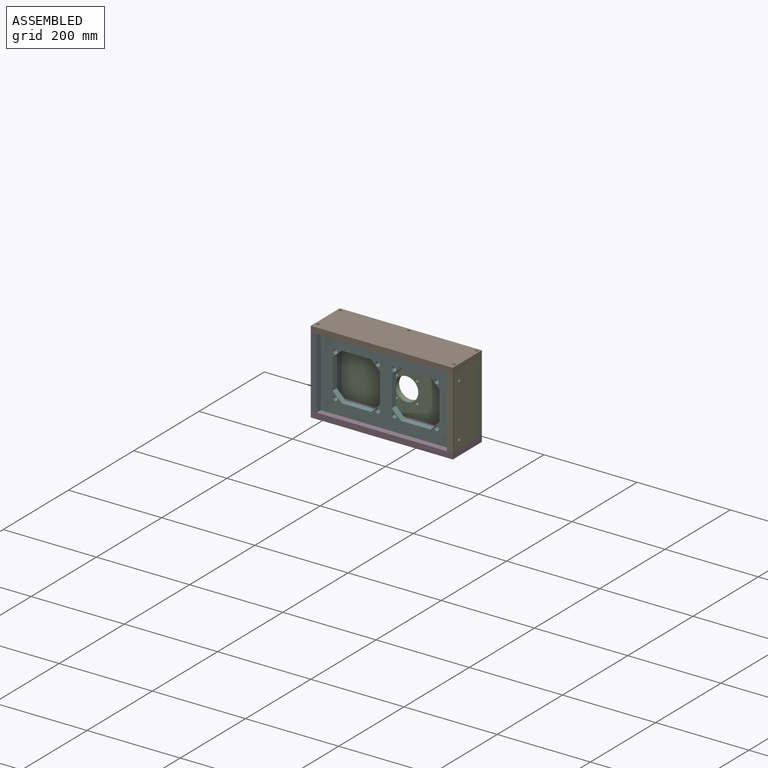
[diagram: assembled view]
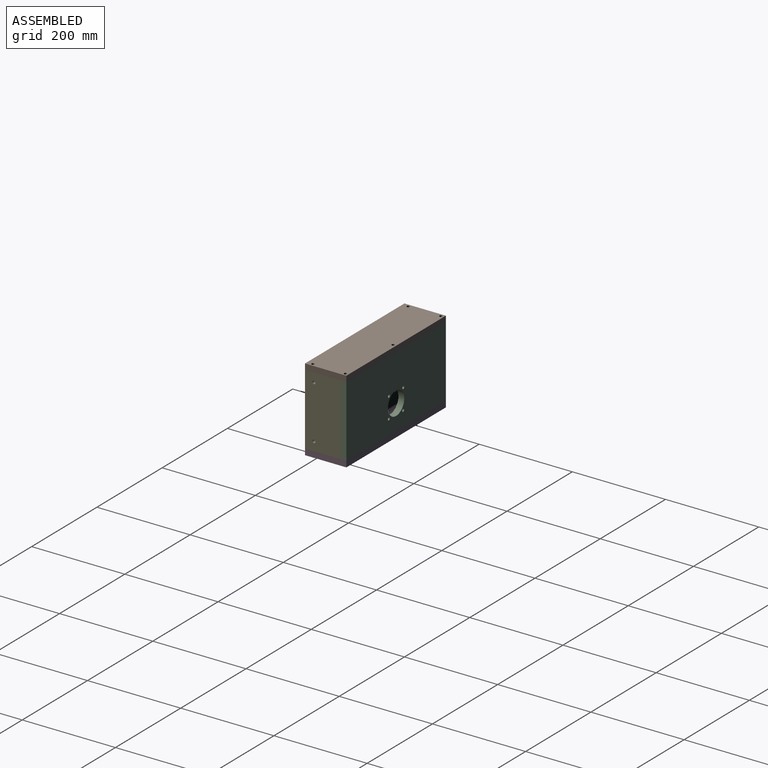
[diagram: assembled view, second angle]
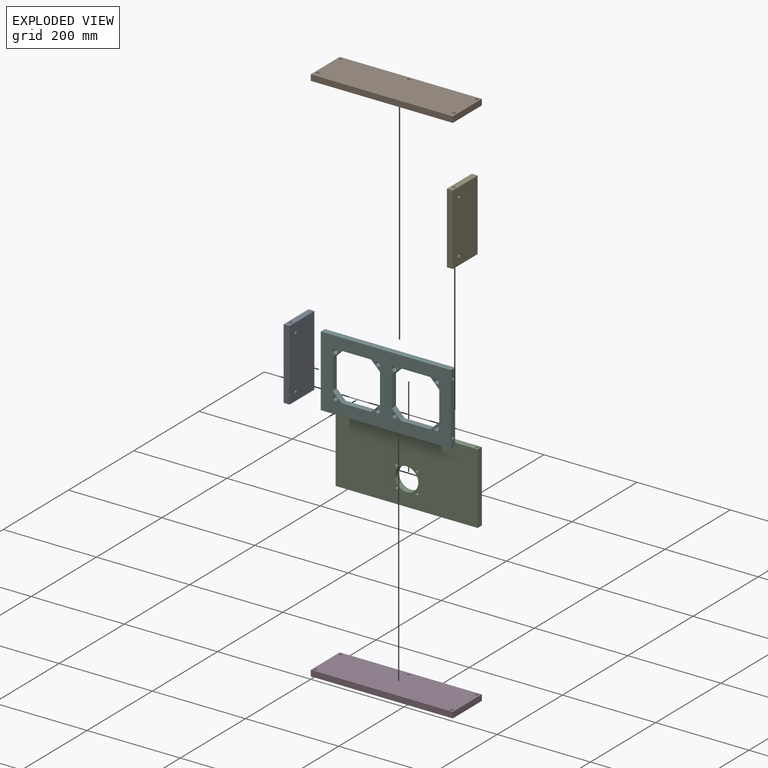
[diagram: exploded view]
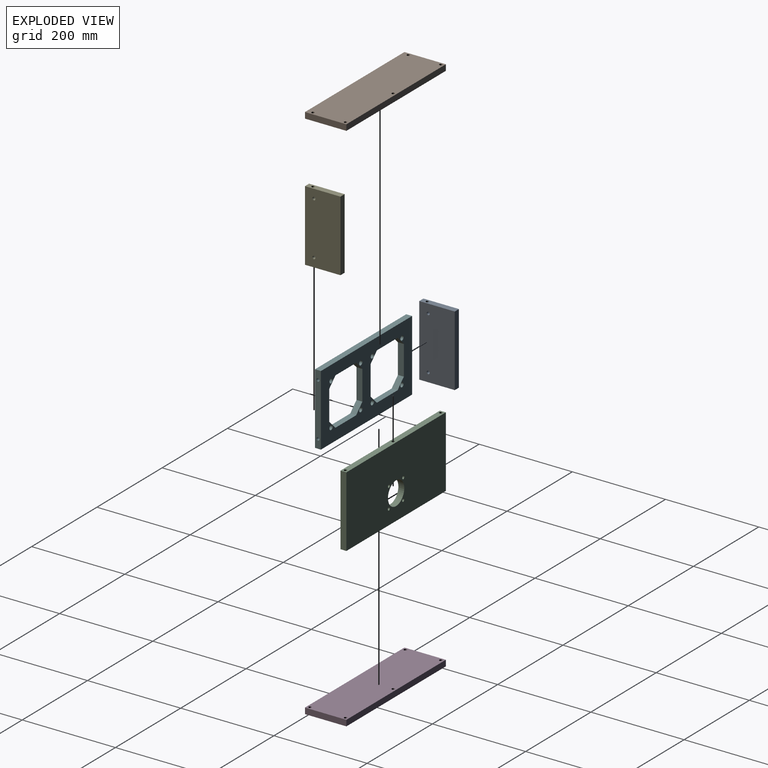
[diagram: exploded view, second angle]
ASSEMBLY  parts=6 mates=5
PART A: 12 faces, bbox 12.7x76.2x152.4 mm
  f0: plane 76.2x12.7mm, normal (0,0,1), area 936.1mm2, adj f1,f3,f4,f5,f8
  f1: plane 152.4x12.7mm, normal (0,1,0), area 1935.5mm2, adj f0,f2,f4,f5
  f2: plane 76.2x12.7mm, normal (0,0,-1), area 936.1mm2, adj f1,f3,f4,f5,f6
  f3: plane 152.4x12.7mm, normal (0,-1,0), area 1935.5mm2, adj f0,f2,f4,f5
  f4: plane 152.4x76.2mm, normal (-1,0,0), area 11549.5mm2, adj f0,f1,f2,f3,f10,f11
  f5: plane 152.4x76.2mm, normal (1,0,0), area 11549.5mm2, adj f0,f1,f2,f3,f10,f11
  f6: cylinder r=3.17mm len=12.7mm, axis (0,0,-1), area 253.4mm2, adj f2,f7
  f7: plane 6.35x6.35mm, normal (0,0,-1), area 31.7mm2, adj f6
  f8: cylinder r=3.17mm len=12.7mm, axis (0,0,1), area 253.4mm2, adj f0,f9
  f9: plane 6.35x6.35mm, normal (0,0,1), area 31.7mm2, adj f8
  f10: cylinder r=3.17mm len=12.7mm, axis (-1,0,0), area 253.4mm2, adj f4,f5
  f11: cylinder r=3.17mm len=12.7mm, axis (-1,0,0), area 253.4mm2, adj f4,f5
PART B: 11 faces, bbox 304.8x88.9x12.7 mm
  f0: plane 304.8x88.9mm, normal (0,0,1), area 26938.4mm2, adj f2,f3,f4,f5,f6,f7,f8,f9
  f1: plane 304.8x88.9mm, normal (0,0,-1), area 26938.4mm2, adj f2,f3,f4,f5,f6,f7,f8,f9
  f2: plane 88.9x12.7mm, normal (-1,0,0), area 1129mm2, adj f0,f1,f3,f5
  f3: plane 304.8x12.7mm, normal (0,-1,0), area 3871mm2, adj f0,f1,f2,f4
  f4: plane 88.9x12.7mm, normal (1,0,0), area 1129mm2, adj f0,f1,f3,f5
  f5: plane 304.8x12.7mm, normal (0,1,0), area 3871mm2, adj f0,f1,f2,f4
  f6: cylinder r=3.17mm len=12.7mm, axis (0,0,1), area 253.4mm2, adj f0,f1
  f7: cylinder r=3.17mm len=12.7mm, axis (0,0,1), area 253.4mm2, adj f0,f1
  f8: cylinder r=3.17mm len=12.7mm, axis (0,0,1), area 253.4mm2, adj f0,f1
  f9: cylinder r=3.17mm len=12.7mm, axis (0,0,1), area 253.4mm2, adj f0,f1
  f10: cylinder r=3.17mm len=12.7mm, axis (0,0,1), area 253.4mm2, adj f0,f1
PART C: 23 faces, bbox 304.8x12.7x152.4 mm
  f0: plane 304.8x12.7mm, normal (0,0,1), area 3776mm2, adj f2,f3,f4,f5,f17,f19,f21
  f1: plane 304.8x12.7mm, normal (0,0,-1), area 3776mm2, adj f2,f3,f4,f5,f11,f13,f15
  f2: plane 152.4x12.7mm, normal (1,0,0), area 1935.5mm2, adj f0,f1,f4,f5
  f3: plane 152.4x12.7mm, normal (-1,0,0), area 1935.5mm2, adj f0,f1,f4,f5
  f4: plane 304.8x152.4mm, normal (0,1,0), area 44361.3mm2, adj f0,f1,f2,f3,f6,f7,f8,f9
  f5: plane 304.8x152.4mm, normal (0,-1,0), area 44361.3mm2, adj f0,f1,f2,f3,f6,f7,f8,f9
  f6: cylinder r=3.17mm len=12.7mm, axis (0,1,0), area 253.4mm2, adj f4,f5
  f7: cylinder r=3.17mm len=12.7mm, axis (0,1,0), area 253.4mm2, adj f4,f5
  f8: cylinder r=3.17mm len=12.7mm, axis (0,1,0), area 253.4mm2, adj f4,f5
  f9: cylinder r=3.17mm len=12.7mm, axis (0,1,0), area 253.4mm2, adj f4,f5
  f10: cylinder r=25mm len=50mm, axis (0,1,0), area 1994.9mm2, adj f4,f5
  f11: cylinder r=3.17mm len=12.7mm, axis (0,0,-1), area 253.4mm2, adj f1,f12
  f12: plane 6.35x6.35mm, normal (0,0,-1), area 31.7mm2, adj f11
  f13: cylinder r=3.17mm len=12.7mm, axis (0,0,-1), area 253.4mm2, adj f1,f14
  f14: plane 6.35x6.35mm, normal (0,0,-1), area 31.7mm2, adj f13
  f15: cylinder r=3.17mm len=12.7mm, axis (0,0,-1), area 253.4mm2, adj f1,f16
  f16: plane 6.35x6.35mm, normal (0,0,-1), area 31.7mm2, adj f15
  f17: cylinder r=3.17mm len=12.7mm, axis (0,0,1), area 253.4mm2, adj f0,f18
  f18: plane 6.35x6.35mm, normal (0,0,1), area 31.7mm2, adj f17
  f19: cylinder r=3.17mm len=12.7mm, axis (0,0,1), area 253.4mm2, adj f0,f20
  f20: plane 6.35x6.35mm, normal (0,0,1), area 31.7mm2, adj f19
  f21: cylinder r=3.17mm len=12.7mm, axis (0,0,1), area 253.4mm2, adj f0,f22
  f22: plane 6.35x6.35mm, normal (0,0,1), area 31.7mm2, adj f21
PART D: 11 faces, bbox 304.8x88.9x12.7 mm
  f0: plane 304.8x88.9mm, normal (0,0,-1), area 26938.4mm2, adj f2,f3,f4,f5,f6,f7,f8,f9
  f1: plane 304.8x88.9mm, normal (0,0,1), area 26938.4mm2, adj f2,f3,f4,f5,f6,f7,f8,f9
  f2: plane 88.9x12.7mm, normal (-1,0,0), area 1129mm2, adj f0,f1,f3,f5
  f3: plane 304.8x12.7mm, normal (0,1,0), area 3871mm2, adj f0,f1,f2,f4
  f4: plane 88.9x12.7mm, normal (1,0,0), area 1129mm2, adj f0,f1,f3,f5
  f5: plane 304.8x12.7mm, normal (0,-1,0), area 3871mm2, adj f0,f1,f2,f4
  f6: cylinder r=3.17mm len=12.7mm, axis (0,0,-1), area 253.4mm2, adj f0,f1
  f7: cylinder r=3.17mm len=12.7mm, axis (0,0,-1), area 253.4mm2, adj f0,f1
  f8: cylinder r=3.17mm len=12.7mm, axis (0,0,-1), area 253.4mm2, adj f0,f1
  f9: cylinder r=3.17mm len=12.7mm, axis (0,0,-1), area 253.4mm2, adj f0,f1
  f10: cylinder r=3.17mm len=12.7mm, axis (0,0,-1), area 253.4mm2, adj f0,f1
PART E: 12 faces, bbox 12.7x76.2x152.4 mm
  f0: plane 76.2x12.7mm, normal (0,0,1), area 936.1mm2, adj f1,f3,f4,f5,f8
  f1: plane 152.4x12.7mm, normal (0,-1,0), area 1935.5mm2, adj f0,f2,f4,f5
  f2: plane 76.2x12.7mm, normal (0,0,-1), area 936.1mm2, adj f1,f3,f4,f5,f6
  f3: plane 152.4x12.7mm, normal (0,1,0), area 1935.5mm2, adj f0,f2,f4,f5
  f4: plane 152.4x76.2mm, normal (1,0,0), area 11549.5mm2, adj f0,f1,f2,f3,f10,f11
  f5: plane 152.4x76.2mm, normal (-1,0,0), area 11549.5mm2, adj f0,f1,f2,f3,f10,f11
  f6: cylinder r=3.17mm len=12.7mm, axis (0,0,-1), area 253.4mm2, adj f2,f7
  f7: plane 6.35x6.35mm, normal (0,0,-1), area 31.7mm2, adj f6
  f8: cylinder r=3.17mm len=12.7mm, axis (0,0,1), area 253.4mm2, adj f0,f9
  f9: plane 6.35x6.35mm, normal (0,0,1), area 31.7mm2, adj f8
  f10: cylinder r=3.17mm len=12.7mm, axis (1,0,0), area 253.4mm2, adj f4,f5
  f11: cylinder r=3.17mm len=12.7mm, axis (1,0,0), area 253.4mm2, adj f4,f5
PART F: 38 faces, bbox 279.4x12.7x152.4 mm
  f0: plane 279.4x152.4mm, normal (0,-1,0), area 22809.2mm2, adj f2,f3,f4,f5,f6,f7,f8,f9
  f1: plane 279.4x152.4mm, normal (0,1,0), area 22809.2mm2, adj f2,f3,f4,f5,f6,f7,f8,f9
  f2: plane 279.4x12.7mm, normal (0,0,1), area 3548.4mm2, adj f0,f1,f3,f12
  f3: plane 152.4x12.7mm, normal (-1,0,0), area 1872.1mm2, adj f0,f1,f2,f4,f34,f36
  f4: plane 279.4x12.7mm, normal (0,0,-1), area 3548.4mm2, adj f0,f1,f3,f12
  f5: cylinder r=4.8mm len=12.7mm, axis (0,1,0), area 382.6mm2, adj f0,f1
  f6: cylinder r=4.8mm len=12.7mm, axis (0,1,0), area 382.6mm2, adj f0,f1
  f7: cylinder r=4.8mm len=12.7mm, axis (0,1,0), area 382.6mm2, adj f0,f1
  f8: cylinder r=4.8mm len=12.7mm, axis (0,1,0), area 382.6mm2, adj f0,f1
  f9: cylinder r=4.8mm len=12.7mm, axis (0,1,0), area 382.6mm2, adj f0,f1
  f10: cylinder r=4.8mm len=12.7mm, axis (0,1,0), area 382.6mm2, adj f0,f1
  f11: cylinder r=4.8mm len=12.7mm, axis (0,1,0), area 382.6mm2, adj f0,f1
  f12: plane 152.4x12.7mm, normal (1,0,0), area 1872.1mm2, adj f0,f1,f2,f4,f30,f32
  f13: cylinder r=4.8mm len=12.7mm, axis (0,1,0), area 382.6mm2, adj f0,f1
  f14: plane 63.5x12.7mm, normal (0,0,-1), area 806.5mm2, adj f0,f1,f15,f21
  f15: plane 19.05x19.05mm, normal (-0.71,0,-0.71), area 342.1mm2, adj f0,f1,f14,f16
  f16: plane 63.5x12.7mm, normal (-1,0,0), area 806.5mm2, adj f0,f1,f15,f17
  f17: plane 19.05x19.05mm, normal (-0.71,0,0.71), area 342.1mm2, adj f0,f1,f16,f18
  f18: plane 63.5x12.7mm, normal (0,0,1), area 806.5mm2, adj f0,f1,f17,f19
  f19: plane 19.05x19.05mm, normal (0.71,0,0.71), area 342.1mm2, adj f0,f1,f18,f20
  f20: plane 63.5x12.7mm, normal (1,0,0), area 806.5mm2, adj f0,f1,f19,f21
  f21: plane 19.05x19.05mm, normal (0.71,0,-0.71), area 342.1mm2, adj f0,f1,f14,f20
  f22: plane 63.5x12.7mm, normal (1,0,0), area 806.5mm2, adj f0,f1,f23,f29
  f23: plane 19.05x19.05mm, normal (0.71,0,0.71), area 342.1mm2, adj f0,f1,f22,f24
  f24: plane 63.5x12.7mm, normal (0,0,1), area 806.5mm2, adj f0,f1,f23,f25
  f25: plane 19.05x19.05mm, normal (-0.71,0,0.71), area 342.1mm2, adj f0,f1,f24,f26
  f26: plane 63.5x12.7mm, normal (-1,0,0), area 806.5mm2, adj f0,f1,f25,f27
  f27: plane 19.05x19.05mm, normal (-0.71,0,-0.71), area 342.1mm2, adj f0,f1,f26,f28
  f28: plane 63.5x12.7mm, normal (0,0,-1), area 806.5mm2, adj f0,f1,f27,f29
  f29: plane 19.05x19.05mm, normal (0.71,0,-0.71), area 342.1mm2, adj f0,f1,f22,f28
  f30: cylinder r=3.17mm len=12.7mm, axis (1,0,0), area 253.4mm2, adj f12,f31
  f31: plane 6.35x6.35mm, normal (1,0,0), area 31.7mm2, adj f30
  f32: cylinder r=3.17mm len=12.7mm, axis (1,0,0), area 253.4mm2, adj f12,f33
  f33: plane 6.35x6.35mm, normal (1,0,0), area 31.7mm2, adj f32
  f34: cylinder r=3.17mm len=12.7mm, axis (-1,0,0), area 253.4mm2, adj f3,f35
  f35: plane 6.35x6.35mm, normal (-1,0,0), area 31.7mm2, adj f34
  f36: cylinder r=3.17mm len=12.7mm, axis (-1,0,0), area 253.4mm2, adj f3,f37
  f37: plane 6.35x6.35mm, normal (-1,0,0), area 31.7mm2, adj f36
PLACE A t=(152.4,25.4,88.9)mm
PLACE B t=(152.4,25.4,88.9)mm
PLACE C t=(152.4,25.4,88.9)mm
PLACE D t=(152.4,25.4,88.9)mm
PLACE E t=(152.4,25.4,88.9)mm
PLACE F t=(152.4,25.4,88.9)mm
MATE fastened B.f6 <-> A.f8  axis (0,0,-1) through (6.35,12.7,165.1)mm
MATE fastened F.f32 <-> A.f11  axis (-1,0,0) through (12.7,19.05,146.05)mm
MATE fastened C.f15 <-> D.f9  axis (0,0,-1) through (298.45,82.55,12.7)mm
MATE fastened E.f6 <-> D.f10  axis (0,0,-1) through (298.45,6.35,12.7)mm
MATE fastened A.f6 <-> D.f6  axis (0,0,-1) through (6.35,6.35,12.7)mm
